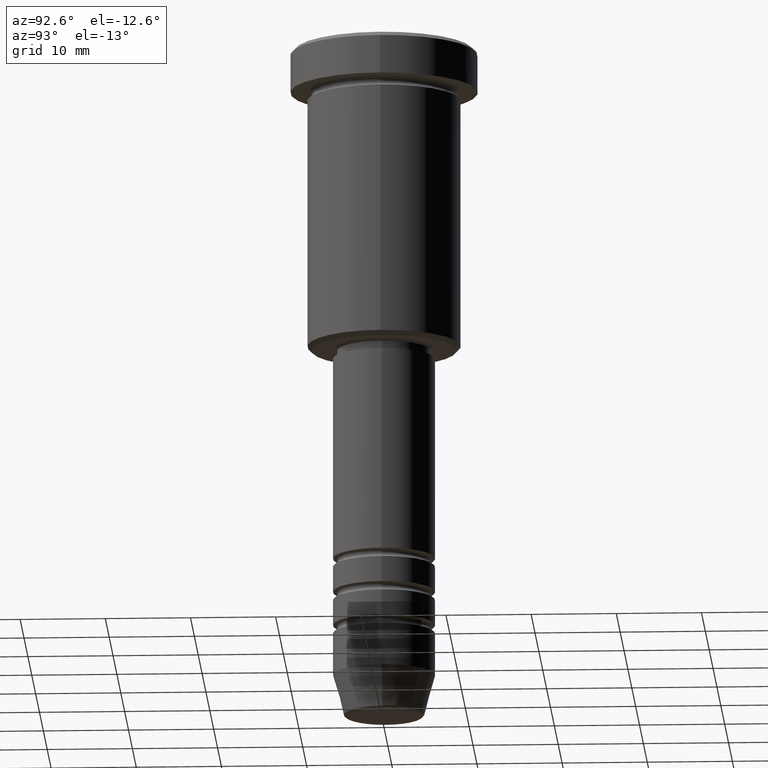
[diagram: clean part render]
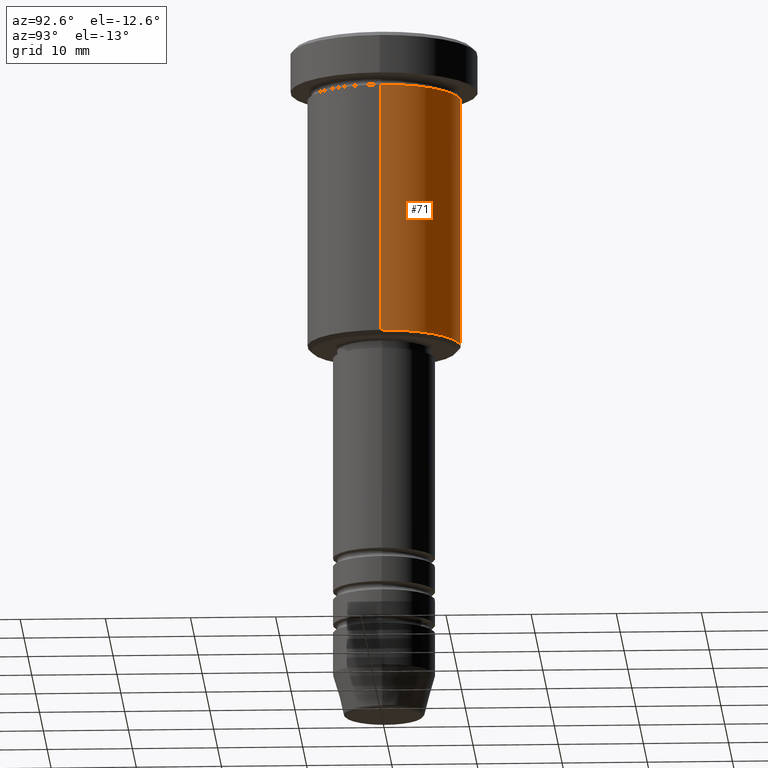
[diagram: same view with one face highlighted and labeled with its STEP entity id]
A machine part, auxiliary view. The second image highlights one B-rep face of the part: STEP entity #71.
In plain terms, the highlighted cylindrical surface (partial cylindrical patch) has radius 9 mm, axis along (-0, -0, 1).
Its self-contained STEP definition (entity closure, byte-faithful):
#23 = CIRCLE ( 'NONE', #693, 9.000000000000000000 ) ;
#63 = DIRECTION ( 'NONE',  ( -1.000000000000000000, 0.000000000000000000, 0.000000000000000000 ) ) ;
#71 = ADVANCED_FACE ( 'NONE', ( #762 ), #1122, .T. ) ;
#116 = CARTESIAN_POINT ( 'NONE',  ( 9.000000000000000000, 0.000000000000000000, -35.50000000000001421 ) ) ;
#158 = ORIENTED_EDGE ( 'NONE', *, *, #398, .T. ) ;
#203 = DIRECTION ( 'NONE',  ( -0.000000000000000000, -0.000000000000000000, 1.000000000000000000 ) ) ;
#219 = CARTESIAN_POINT ( 'NONE',  ( 9.000000000000000000, 0.000000000000000000, -6.000000000000000000 ) ) ;
#224 = CIRCLE ( 'NONE', #1041, 9.000000000000000000 ) ;
#252 = CARTESIAN_POINT ( 'NONE',  ( 0.000000000000000000, 0.000000000000000000, -6.000000000000000000 ) ) ;
#270 = DIRECTION ( 'NONE',  ( -0.000000000000000000, -0.000000000000000000, 1.000000000000000000 ) ) ;
#291 = ORIENTED_EDGE ( 'NONE', *, *, #572, .F. ) ;
#297 = VERTEX_POINT ( 'NONE', #219 ) ;
#306 = DIRECTION ( 'NONE',  ( -0.000000000000000000, -0.000000000000000000, 1.000000000000000000 ) ) ;
#368 = VERTEX_POINT ( 'NONE', #116 ) ;
#398 = EDGE_CURVE ( 'NONE', #368, #878, #23, .T. ) ;
#406 = DIRECTION ( 'NONE',  ( 1.000000000000000000, 0.000000000000000000, 0.000000000000000000 ) ) ;
#440 = DIRECTION ( 'NONE',  ( 1.000000000000000000, 0.000000000000000000, 0.000000000000000000 ) ) ;
#465 = CARTESIAN_POINT ( 'NONE',  ( -9.000000000000000000, 1.102182119232617714E-15, 0.000000000000000000 ) ) ;
#486 = ORIENTED_EDGE ( 'NONE', *, *, #641, .T. ) ;
#522 = EDGE_CURVE ( 'NONE', #297, #782, #224, .T. ) ;
#570 = LINE ( 'NONE', #725, #945 ) ;
#572 = EDGE_CURVE ( 'NONE', #368, #297, #570, .T. ) ;
#618 = CARTESIAN_POINT ( 'NONE',  ( -9.000000000000000000, 1.102182119232617714E-15, -35.50000000000001421 ) ) ;
#641 = EDGE_CURVE ( 'NONE', #878, #782, #1021, .T. ) ;
#677 = CARTESIAN_POINT ( 'NONE',  ( 0.000000000000000000, 0.000000000000000000, 0.000000000000000000 ) ) ;
#693 = AXIS2_PLACEMENT_3D ( 'NONE', #802, #270, #63 ) ;
#725 = CARTESIAN_POINT ( 'NONE',  ( 9.000000000000000000, 0.000000000000000000, 0.000000000000000000 ) ) ;
#762 = FACE_OUTER_BOUND ( 'NONE', #982, .T. ) ;
#782 = VERTEX_POINT ( 'NONE', #942 ) ;
#802 = CARTESIAN_POINT ( 'NONE',  ( 0.000000000000000000, 0.000000000000000000, -35.50000000000001421 ) ) ;
#878 = VERTEX_POINT ( 'NONE', #618 ) ;
#883 = DIRECTION ( 'NONE',  ( -0.000000000000000000, -0.000000000000000000, 1.000000000000000000 ) ) ;
#900 = DIRECTION ( 'NONE',  ( -0.000000000000000000, -0.000000000000000000, 1.000000000000000000 ) ) ;
#942 = CARTESIAN_POINT ( 'NONE',  ( -9.000000000000000000, 1.102182119232617714E-15, -6.000000000000000000 ) ) ;
#945 = VECTOR ( 'NONE', #900, 1000.000000000000000 ) ;
#982 = EDGE_LOOP ( 'NONE', ( #158, #486, #1066, #291 ) ) ;
#1021 = LINE ( 'NONE', #465, #1097 ) ;
#1027 = AXIS2_PLACEMENT_3D ( 'NONE', #677, #306, #406 ) ;
#1041 = AXIS2_PLACEMENT_3D ( 'NONE', #252, #883, #440 ) ;
#1066 = ORIENTED_EDGE ( 'NONE', *, *, #522, .F. ) ;
#1097 = VECTOR ( 'NONE', #203, 1000.000000000000000 ) ;
#1122 = CYLINDRICAL_SURFACE ( 'NONE', #1027, 9.000000000000000000 ) ;